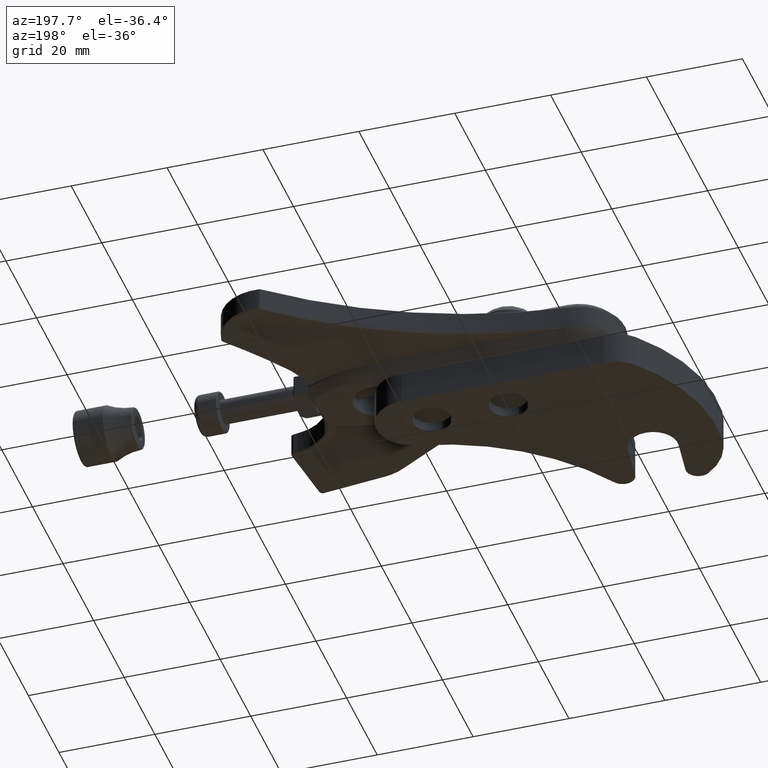
[diagram: clean part render]
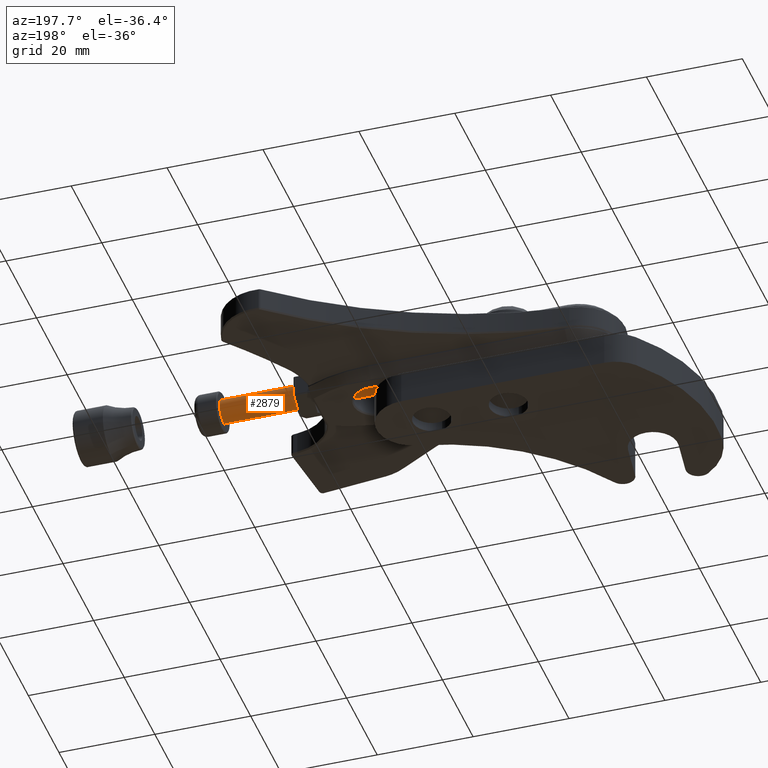
[diagram: same view with one face highlighted and labeled with its STEP entity id]
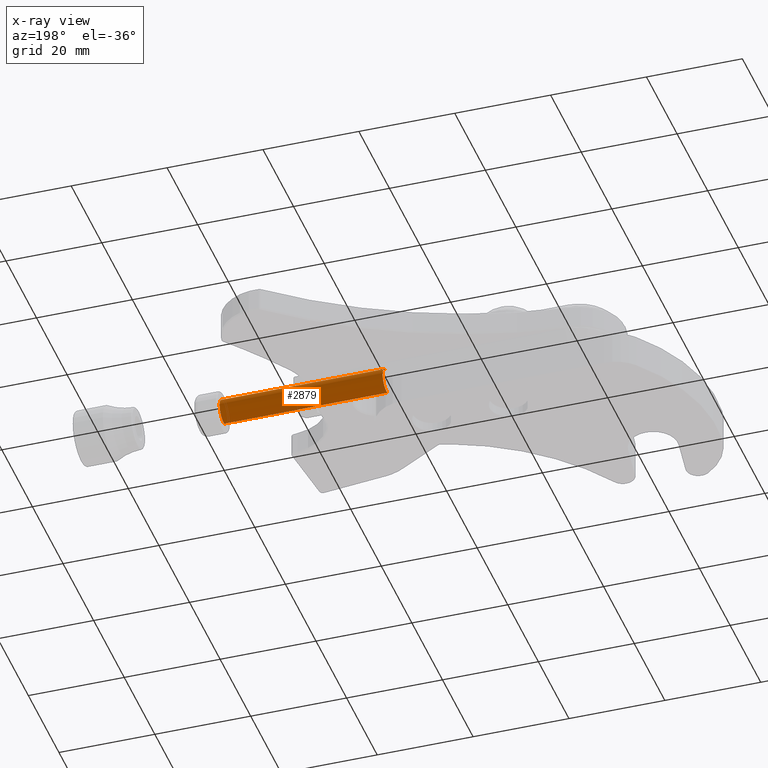
[diagram: x-ray of the same camera — body ghosted, the highlighted face saturated]
A machine part, auxiliary view. The second image highlights one B-rep face of the part: STEP entity #2879.
The next image is the same camera in x-ray: the body ghosted, the highlighted face saturated — about 0% of this face is hidden behind the body in this view.
In plain terms, the highlighted cylindrical surface (edge-blend (fillet) strip) has radius 2.5 mm, axis along (1, -0, 0).
Its self-contained STEP definition (entity closure, byte-faithful):
#63 = CARTESIAN_POINT ( 'NONE',  ( -1.377952755905512000, 0.0000000000000000000, 0.0000000000000000000 ) ) ;
#64 = DIRECTION ( 'NONE',  ( -1.000000000000000000, -0.0000000000000000000, -0.0000000000000000000 ) ) ;
#65 = DIRECTION ( 'NONE',  ( 0.0000000000000000000, 0.0000000000000000000, 1.000000000000000000 ) ) ;
#67 = CARTESIAN_POINT ( 'NONE',  ( -0.03937007874015751400, 0.0000000000000000000, 0.0000000000000000000 ) ) ;
#68 = DIRECTION ( 'NONE',  ( -1.000000000000000000, -0.0000000000000000000, -0.0000000000000000000 ) ) ;
#69 = DIRECTION ( 'NONE',  ( 0.0000000000000000000, 0.0000000000000000000, 1.000000000000000000 ) ) ;
#150 = AXIS2_PLACEMENT_3D ( 'NONE', #63, #64, #65 ) ;
#151 = AXIS2_PLACEMENT_3D ( 'NONE', #67, #68, #69 ) ;
#781 = EDGE_CURVE ( 'NONE', #995, #2608, #2970, .T. ) ;
#783 = EDGE_CURVE ( 'NONE', #2624, #2619, #2972, .T. ) ;
#795 = EDGE_CURVE ( 'NONE', #2619, #2608, #2989, .T. ) ;
#797 = EDGE_CURVE ( 'NONE', #2624, #995, #2990, .T. ) ;
#995 = VERTEX_POINT ( 'NONE', #6570 ) ;
#1431 = ORIENTED_EDGE ( 'NONE', *, *, #797, .T. ) ;
#1433 = ORIENTED_EDGE ( 'NONE', *, *, #783, .F. ) ;
#1450 = ORIENTED_EDGE ( 'NONE', *, *, #781, .T. ) ;
#1451 = ORIENTED_EDGE ( 'NONE', *, *, #795, .F. ) ;
#1784 = EDGE_LOOP ( 'NONE', ( #1433, #1431, #1450, #1451 ) ) ;
#2608 = VERTEX_POINT ( 'NONE', #5597 ) ;
#2619 = VERTEX_POINT ( 'NONE', #4973 ) ;
#2624 = VERTEX_POINT ( 'NONE', #4978 ) ;
#2879 = ADVANCED_FACE ( 'NONE', ( #4372 ), #4371, .T. ) ;
#2896 = DIRECTION ( 'NONE',  ( -1.000000000000000000, -0.0000000000000000000, -0.0000000000000000000 ) ) ;
#2904 = CARTESIAN_POINT ( 'NONE',  ( -1.574803149606299500, 0.0000000000000000000, 0.09842519685039362300 ) ) ;
#2908 = DIRECTION ( 'NONE',  ( -1.000000000000000000, -0.0000000000000000000, -0.0000000000000000000 ) ) ;
#2909 = CARTESIAN_POINT ( 'NONE',  ( -1.574803149606299500, 1.205361022782827000E-017, -0.09842519685039362300 ) ) ;
#2970 = LINE ( 'NONE', #2904, #2973 ) ;
#2972 = LINE ( 'NONE', #2909, #2976 ) ;
#2973 = VECTOR ( 'NONE', #2896, 39.37007874015748100 ) ;
#2976 = VECTOR ( 'NONE', #2908, 39.37007874015748100 ) ;
#2989 = CIRCLE ( 'NONE', #150, 0.09842519685039354000 ) ;
#2990 = CIRCLE ( 'NONE', #151, 0.09842519685039362300 ) ;
#3483 = AXIS2_PLACEMENT_3D ( 'NONE', #7297, #7298, #7296 ) ;
#4371 = CYLINDRICAL_SURFACE ( 'NONE', #3483, 0.09842519685039362300 ) ;
#4372 = FACE_OUTER_BOUND ( 'NONE', #1784, .T. ) ;
#4973 = CARTESIAN_POINT ( 'NONE',  ( -1.377952755905512000, 1.205361022782826300E-017, -0.09842519685039354000 ) ) ;
#4978 = CARTESIAN_POINT ( 'NONE',  ( -0.03937007874015751400, 1.205361022782827000E-017, -0.09842519685039362300 ) ) ;
#5597 = CARTESIAN_POINT ( 'NONE',  ( -1.377952755905512000, 0.0000000000000000000, 0.09842519685039354000 ) ) ;
#6570 = CARTESIAN_POINT ( 'NONE',  ( -0.03937007874015751400, 0.0000000000000000000, 0.09842519685039362300 ) ) ;
#7296 = DIRECTION ( 'NONE',  ( 0.0000000000000000000, 0.0000000000000000000, 1.000000000000000000 ) ) ;
#7297 = CARTESIAN_POINT ( 'NONE',  ( -1.574803149606299500, 0.0000000000000000000, 0.0000000000000000000 ) ) ;
#7298 = DIRECTION ( 'NONE',  ( -1.000000000000000000, -0.0000000000000000000, -0.0000000000000000000 ) ) ;